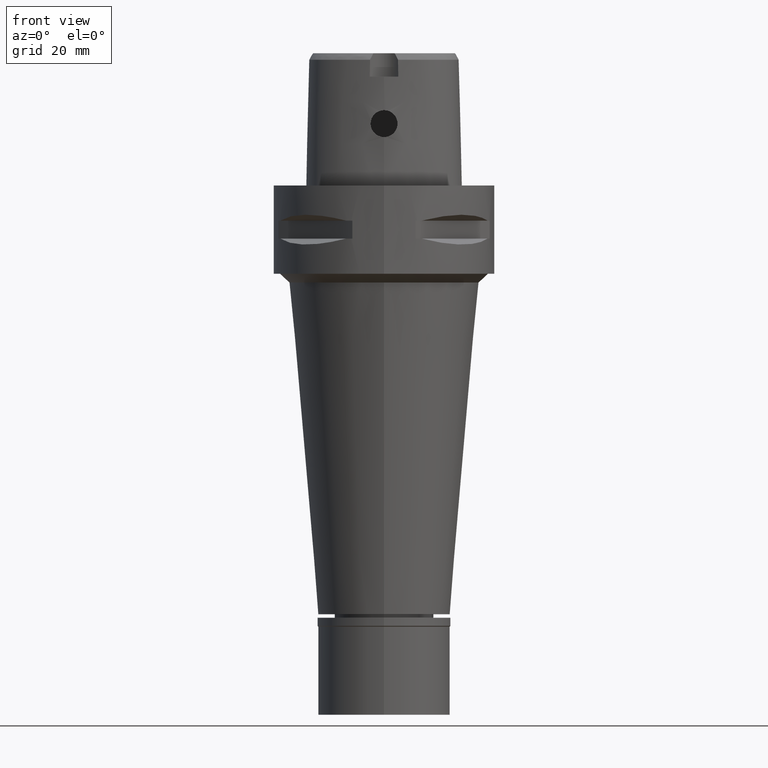
[diagram: clean part render]
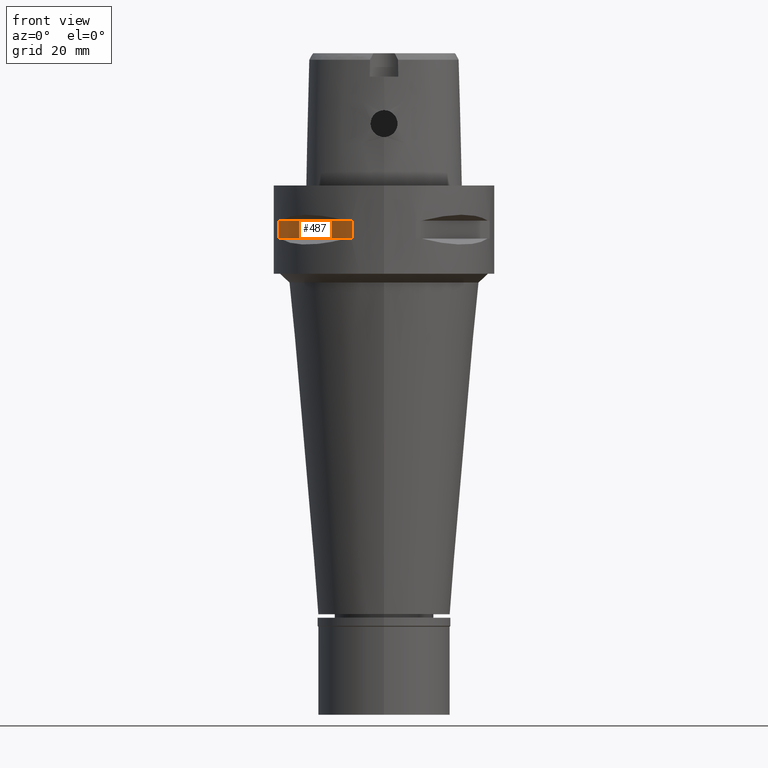
[diagram: same view with one face highlighted and labeled with its STEP entity id]
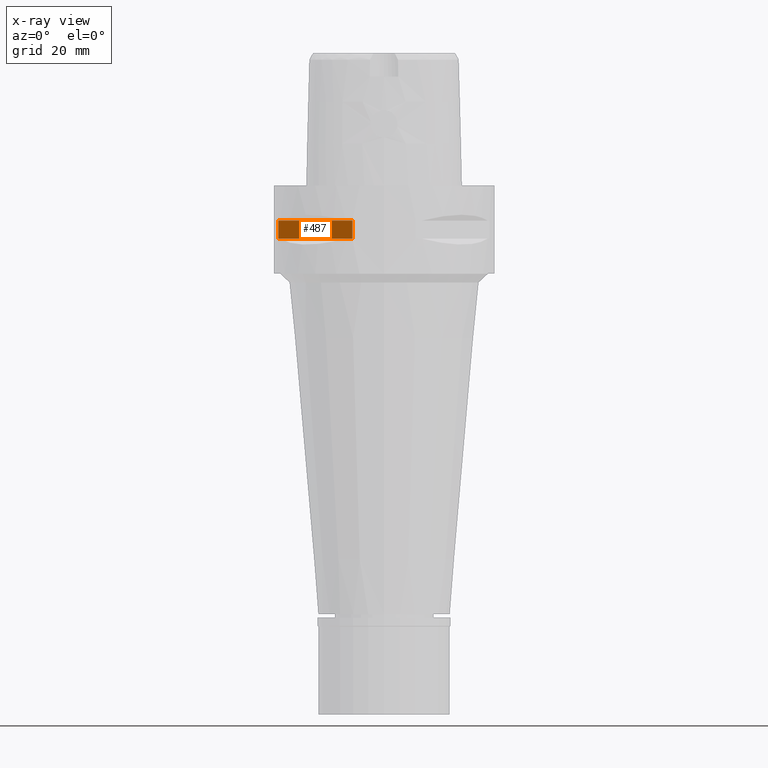
[diagram: x-ray of the same camera — body ghosted, the highlighted face saturated]
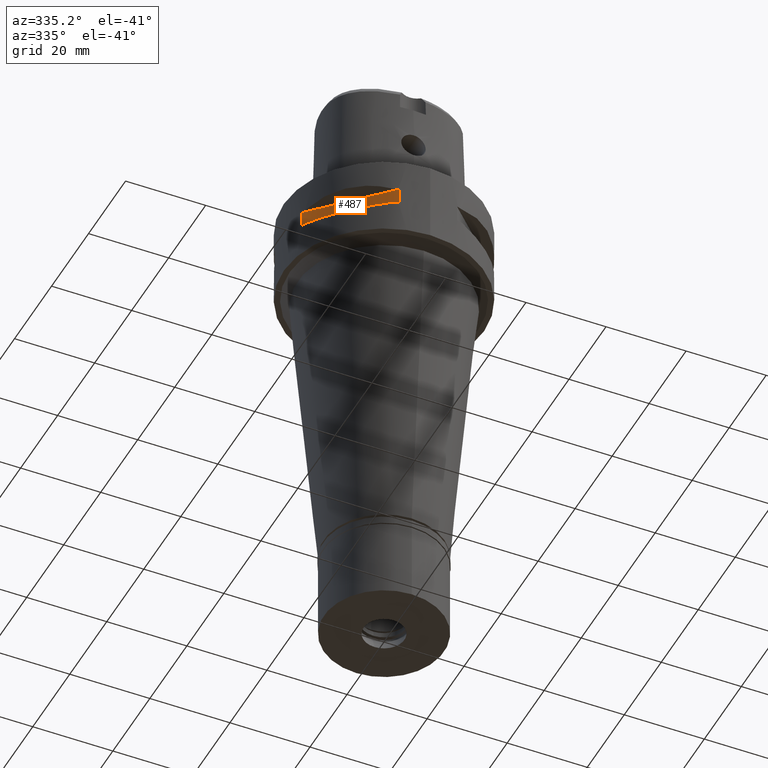
[diagram: same view with one face highlighted and labeled with its STEP entity id]
A machine part, front view. The second image highlights one B-rep face of the part: STEP entity #487.
The next image is the same camera in x-ray: the body ghosted, the highlighted face saturated — about 0% of this face is hidden behind the body in this view.
A second angle (auxiliary view) of the same face is appended — the face is thin or edge-on in the first view.
In plain terms, the highlighted planar face has unit normal (0.7071, 0.7071, 0).
Its self-contained STEP definition (entity closure, byte-faithful):
#78 = DIRECTION ( 'NONE',  ( 0.0000000000000000000, 0.0000000000000000000, -1.000000000000000000 ) ) ;
#149 = DIRECTION ( 'NONE',  ( 0.7071067811865475727, 0.7071067811865475727, 0.0000000000000000000 ) ) ;
#170 = PLANE ( 'NONE',  #1384 ) ;
#247 = DIRECTION ( 'NONE',  ( 0.7071067811865474617, -0.7071067811865474617, 0.0000000000000000000 ) ) ;
#451 = CARTESIAN_POINT ( 'NONE',  ( -23.95277699797999915, -7.159921374230999724, -7.950000000000000178 ) ) ;
#487 = ADVANCED_FACE ( 'NONE', ( #1226 ), #170, .F. ) ;
#488 = VERTEX_POINT ( 'NONE', #2368 ) ;
#492 = LINE ( 'NONE', #451, #1491 ) ;
#660 = EDGE_LOOP ( 'NONE', ( #949, #1057, #3760, #4074 ) ) ;
#712 = EDGE_CURVE ( 'NONE', #3279, #488, #3267, .T. ) ;
#828 = VECTOR ( 'NONE', #3732, 1000.000000000000114 ) ;
#908 = VECTOR ( 'NONE', #1440, 1000.000000000000000 ) ;
#949 = ORIENTED_EDGE ( 'NONE', *, *, #712, .F. ) ;
#1057 = ORIENTED_EDGE ( 'NONE', *, *, #2922, .T. ) ;
#1226 = FACE_OUTER_BOUND ( 'NONE', #660, .T. ) ;
#1244 = VECTOR ( 'NONE', #247, 1000.000000000000114 ) ;
#1384 = AXIS2_PLACEMENT_3D ( 'NONE', #2736, #149, #4285 ) ;
#1440 = DIRECTION ( 'NONE',  ( 0.0000000000000000000, 0.0000000000000000000, 1.000000000000000000 ) ) ;
#1489 = CARTESIAN_POINT ( 'NONE',  ( -23.95277699797999915, -7.159921374230999724, -12.05000000000000071 ) ) ;
#1491 = VECTOR ( 'NONE', #78, 1000.000000000000000 ) ;
#1906 = EDGE_CURVE ( 'NONE', #3585, #488, #4908, .T. ) ;
#2044 = VERTEX_POINT ( 'NONE', #1489 ) ;
#2202 = CARTESIAN_POINT ( 'NONE',  ( -23.95277699797999915, -7.159921374230999724, -7.950000000000000178 ) ) ;
#2368 = CARTESIAN_POINT ( 'NONE',  ( -7.159921374230999724, -23.95277699797999915, -7.950000000000000178 ) ) ;
#2736 = CARTESIAN_POINT ( 'NONE',  ( -4.949747468305999654, -26.16295090389999700, -7.950000000000000178 ) ) ;
#2922 = EDGE_CURVE ( 'NONE', #3279, #2044, #492, .T. ) ;
#3094 = CARTESIAN_POINT ( 'NONE',  ( -23.95277699797999915, -7.159921374235000080, -7.950000000000000178 ) ) ;
#3212 = CARTESIAN_POINT ( 'NONE',  ( -23.95277699797999915, -7.159921374230999724, -12.05000000000000071 ) ) ;
#3267 = LINE ( 'NONE', #2202, #828 ) ;
#3279 = VERTEX_POINT ( 'NONE', #3094 ) ;
#3300 = CARTESIAN_POINT ( 'NONE',  ( -7.159921374230999724, -23.95277699797999915, -12.05000000000000071 ) ) ;
#3585 = VERTEX_POINT ( 'NONE', #3775 ) ;
#3732 = DIRECTION ( 'NONE',  ( 0.7071067811865474617, -0.7071067811865474617, 0.0000000000000000000 ) ) ;
#3760 = ORIENTED_EDGE ( 'NONE', *, *, #3931, .T. ) ;
#3775 = CARTESIAN_POINT ( 'NONE',  ( -7.159921374235000080, -23.95277699797999915, -12.05000000000000071 ) ) ;
#3931 = EDGE_CURVE ( 'NONE', #2044, #3585, #4019, .T. ) ;
#4019 = LINE ( 'NONE', #3212, #1244 ) ;
#4074 = ORIENTED_EDGE ( 'NONE', *, *, #1906, .T. ) ;
#4285 = DIRECTION ( 'NONE',  ( 0.0000000000000000000, 0.0000000000000000000, -1.000000000000000000 ) ) ;
#4908 = LINE ( 'NONE', #3300, #908 ) ;